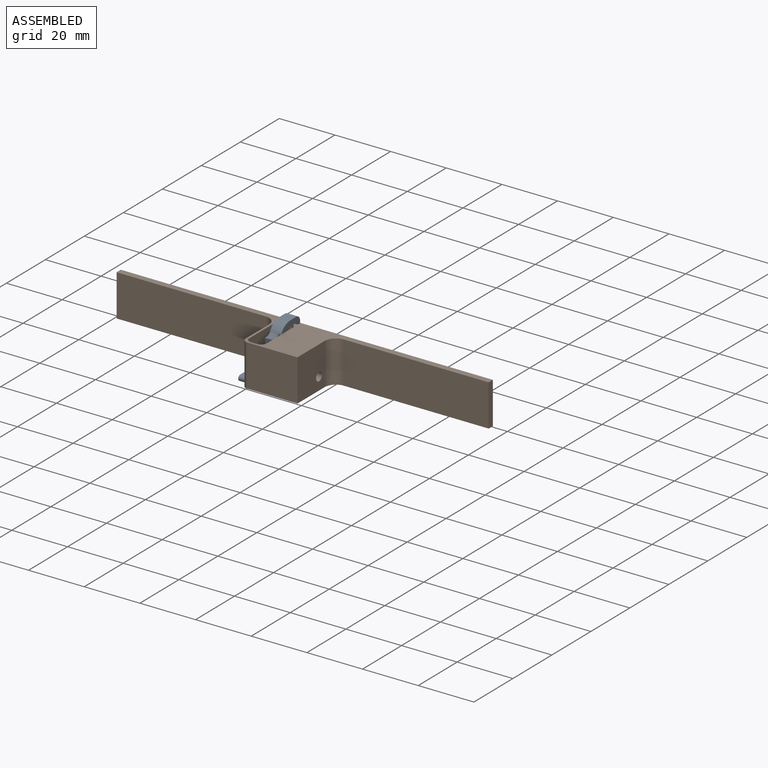
[diagram: assembled view]
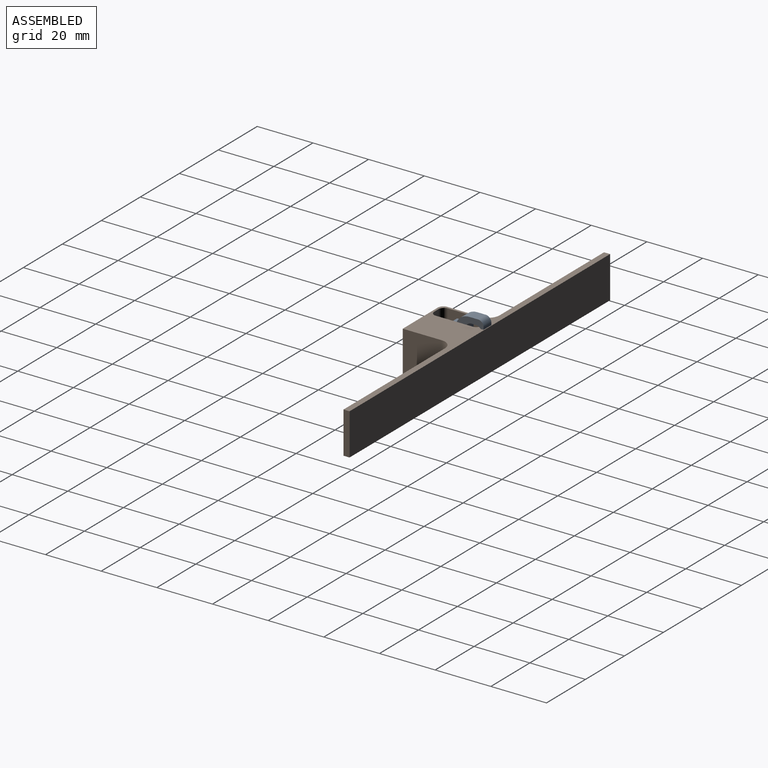
[diagram: assembled view, second angle]
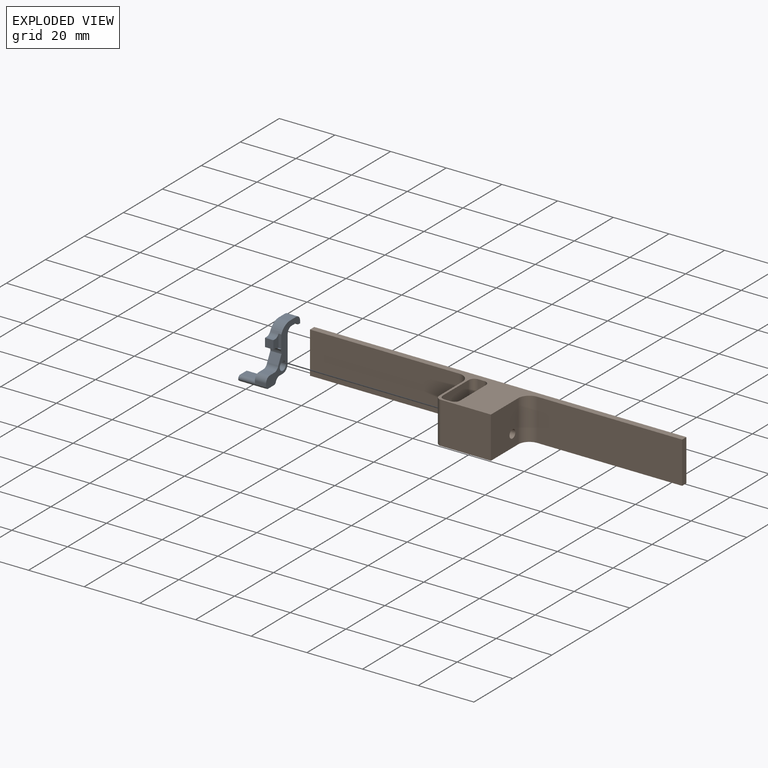
[diagram: exploded view]
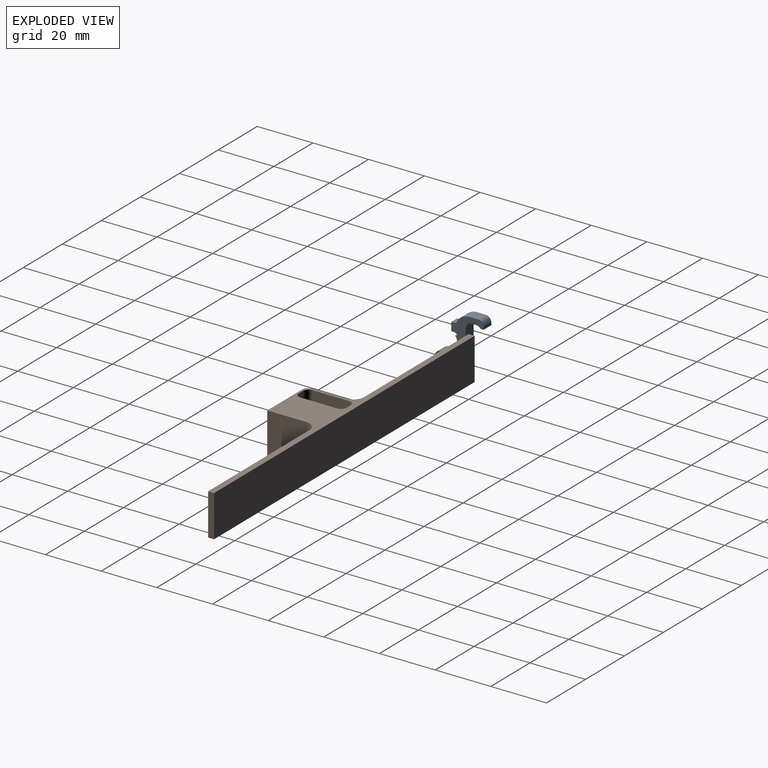
[diagram: exploded view, second angle]
ASSEMBLY  parts=2 mates=2
PART A: 37 faces, bbox 10x17.5x17.8 mm
  f0: plane 3x0.75mm, normal (0,0,-1), area 2.2mm2, adj f1,f3,f5,f35
  f1: plane 3x3mm, normal (0,-1,0), area 9mm2, adj f0,f2,f5,f35
  f2: plane 3x0.85mm, normal (0,0,1), area 2.6mm2, adj f1,f4,f5,f35
  f3: cylinder r=2mm len=4mm, axis (-1,0,0), area 11.2mm2, adj f0,f5,f14,f20,f34,f35
  f4: cylinder r=2mm len=3mm, axis (-1,0,0), area 6.7mm2, adj f2,f5,f29,f35
  f5: plane 17.48x17.19mm, normal (-1,0,0), area 83.8mm2, adj f0,f1,f2,f3,f4,f6,f7,f8
  f6: plane 9.32x4mm, normal (0,1,0), area 37.3mm2, adj f5,f7,f20,f25
  f7: cylinder r=2.5mm len=4mm, axis (1,0,0), area 16.3mm2, adj f5,f6,f8,f20
  f8: plane 4x1.56mm, normal (0,0,-1), area 6.2mm2, adj f5,f7,f20,f27
  f9: plane 10x3.1mm, normal (0,0,-1), area 31mm2, adj f20,f22,f31,f33
  f10: plane 4x0.95mm, normal (0,-1,0), area 3.8mm2, adj f5,f20,f26,f31
  f11: plane 4x2.36mm, normal (0,0,1), area 9.4mm2, adj f5,f20,f26,f28
  f12: cylinder r=2.5mm len=4mm, axis (1,0,0), area 1.4mm2, adj f5,f13,f20,f28
  f13: plane 4x3mm, normal (0,-0.89,0.46), area 13.5mm2, adj f5,f12,f14,f20
  f14: plane 4x0.25mm, normal (0,-1,0), area 1mm2, adj f3,f5,f13,f20
  f15: plane 4x3.15mm, normal (0,0,1), area 12.6mm2, adj f5,f20,f23,f29
  f16: plane 4x0.84mm, normal (0,1,0), area 3.4mm2, adj f5,f17,f20,f23
  f17: plane 4x1.06mm, normal (0,0,-1), area 4.2mm2, adj f5,f16,f20,f24
  f18: plane 4x1.69mm, normal (0,0,-1), area 6.7mm2, adj f5,f20,f24,f25
  f19: cylinder r=1.55mm len=4mm, axis (1,0,0), area 39.1mm2, adj f5,f20
  f20: plane 17.84x17.48mm, normal (1,0,0), area 83.9mm2, adj f3,f6,f7,f8,f9,f10,f11,f12
  f21: plane 6x3.09mm, normal (0,0,1), area 18.5mm2, adj f5,f22,f30,f32
  f22: plane 5.09x1.95mm, normal (-1,0,0), area 9.1mm2, adj f9,f21,f30,f31,f32,f33
  f23: cylinder r=2mm len=4mm, axis (1,0,0), area 12.6mm2, adj f5,f15,f16,f20
  f24: cylinder r=2mm len=4mm, axis (1,0,0), area 7.6mm2, adj f5,f17,f18,f20
  f25: cylinder r=2mm len=4mm, axis (-1,0,0), area 12.6mm2, adj f5,f6,f18,f20
  f26: cylinder r=2mm len=4mm, axis (1,0,0), area 12.7mm2, adj f5,f10,f11,f20
  f27: cylinder r=2mm len=4mm, axis (-1,0,0), area 9.9mm2, adj f5,f8,f20,f33
  f28: cylinder r=2mm len=4mm, axis (1,0,0), area 9.9mm2, adj f5,f11,f12,f20
  f29: cylinder r=5mm len=4.5mm, axis (-1,0,0), area 22.4mm2, adj f4,f5,f15,f20,f36
  f30: cylinder r=1mm len=6mm, axis (-1,0,0), area 11.2mm2, adj f5,f21,f22,f33
  f31: cylinder r=1mm len=10mm, axis (1,0,0), area 15.6mm2, adj f5,f9,f10,f20,f22,f32
  f32: cylinder r=1mm len=6mm, axis (-1,0,0), area 9.3mm2, adj f5,f21,f22,f31
  f33: cylinder r=1mm len=10mm, axis (-1,0,0), area 12.2mm2, adj f5,f9,f20,f22,f27,f30
  f34: plane 1x0.61mm, normal (0,0,1), area 0.6mm2, adj f3,f20,f35,f36
  f35: plane 4.61x2.65mm, normal (1,0,0), area 9mm2, adj f0,f1,f2,f3,f4,f34,f36
  f36: plane 4.61x1mm, normal (0,-1,0), area 4.6mm2, adj f20,f29,f34,f35
PART B: 32 faces, bbox 133.7x20.2x15 mm
  f0: plane 15x12mm, normal (-1,0,0), area 139.8mm2, adj f14,f15,f19,f21,f23,f25,f27,f30
  f1: plane 14x13.2mm, normal (-1,0,0), area 172.3mm2, adj f2,f5,f14,f20,f22,f27,f29
  f2: plane 10.42x6.2mm, normal (0,0,1), area 62.9mm2, adj f1,f3,f7,f18,f20,f27
  f3: plane 14x13.2mm, normal (1,0,0), area 151.1mm2, adj f2,f4,f14,f18,f21,f27,f30
  f4: cylinder r=2mm len=14mm, axis (0,0,1), area 43mm2, adj f3,f14,f16,f17,f28,f30
  f5: cylinder r=2mm len=14mm, axis (0,0,-1), area 43mm2, adj f1,f14,f16,f17,f28,f29
  f6: plane 53.59x15mm, normal (0,-1,0), area 803.8mm2, adj f13,f14,f15,f23,f24,f25
  f7: plane 14x2.2mm, normal (0,-1,0), area 30.8mm2, adj f2,f14,f18,f20
  f8: plane 18x15mm, normal (0,-1,0), area 270mm2, adj f9,f14,f15,f19
  f9: plane 15x14mm, normal (1,0,0), area 202.9mm2, adj f8,f14,f15,f22,f26
  f10: plane 52.1x15mm, normal (0,-1,0), area 781.4mm2, adj f11,f14,f15,f26
  f11: plane 15x2.17mm, normal (1,0,0), area 32.5mm2, adj f10,f12,f14,f15
  f12: plane 133.68x15mm, normal (0,1,0), area 2005.2mm2, adj f11,f13,f14,f15
  f13: plane 15x2.17mm, normal (-1,0,0), area 32.5mm2, adj f6,f12,f14,f15
  f14: plane 133.68x20.17mm, normal (0,0,1), area 552.4mm2, adj f0,f1,f3,f4,f5,f6,f7,f8
  f15: plane 133.68x20.17mm, normal (0,0,-1), area 613.8mm2, adj f0,f6,f8,f9,f10,f11,f12,f13
  f16: plane 5.87x1.2mm, normal (0,0,1), area 5.8mm2, adj f4,f5,f17,f28
  f17: plane 14x2.2mm, normal (0,1,0), area 30.8mm2, adj f4,f5,f14,f16
  f18: cylinder r=2mm len=14mm, axis (0,0,-1), area 44mm2, adj f2,f3,f7,f14
  f19: cylinder r=2mm len=15mm, axis (0,0,1), area 47.1mm2, adj f0,f8,f14,f15,f28
  f20: cylinder r=2mm len=14mm, axis (0,0,1), area 44mm2, adj f1,f2,f7,f14
  f21: cylinder r=3mm len=6mm, axis (-1,0,0), area 15.1mm2, adj f0,f3,f24
  f22: cylinder r=1.5mm len=13mm, axis (-1,0,0), area 122.5mm2, adj f1,f9
  f23: cylinder r=4mm len=4mm, axis (0,0,-1), area 25.1mm2, adj f0,f6,f15,f24
  f24: bspline ~4.12x4.1mm, area 6.2mm2, adj f6,f21,f23,f25
  f25: cylinder r=4mm len=10mm, axis (0,0,-1), area 62.8mm2, adj f0,f6,f14,f24
  f26: cylinder r=4mm len=15mm, axis (0,0,-1), area 94.2mm2, adj f9,f10,f14,f15
  f27: plane 7.5x2.14mm, normal (0,-1,0), area 9mm2, adj f0,f1,f2,f3,f15,f29,f30,f31
  f28: plane 7.5x2.14mm, normal (0,1,0), area 9.4mm2, adj f4,f5,f15,f16,f19,f29,f30,f31
  f29: plane 5.58x0.67mm, normal (0,0,-1), area 2.8mm2, adj f1,f5,f27,f28,f31
  f30: plane 5.58x0.97mm, normal (0,0,-1), area 4.5mm2, adj f0,f3,f4,f27,f28
  f31: plane 5.58x2.14mm, normal (-1,0,0), area 12mm2, adj f15,f27,f28,f29
PLACE A t=(-38.43,-9.36,5.91)mm
PLACE B t=(-38.43,-9.36,5.91)mm fixed
MATE planar B.f1 <-> A.f20  axis (-1,0,0) through (-12.22,6.34,14.25)mm
MATE slider A.f7 <-> B.f21  axis (1,0,0) through (-14.22,7.92,10.41)mm
